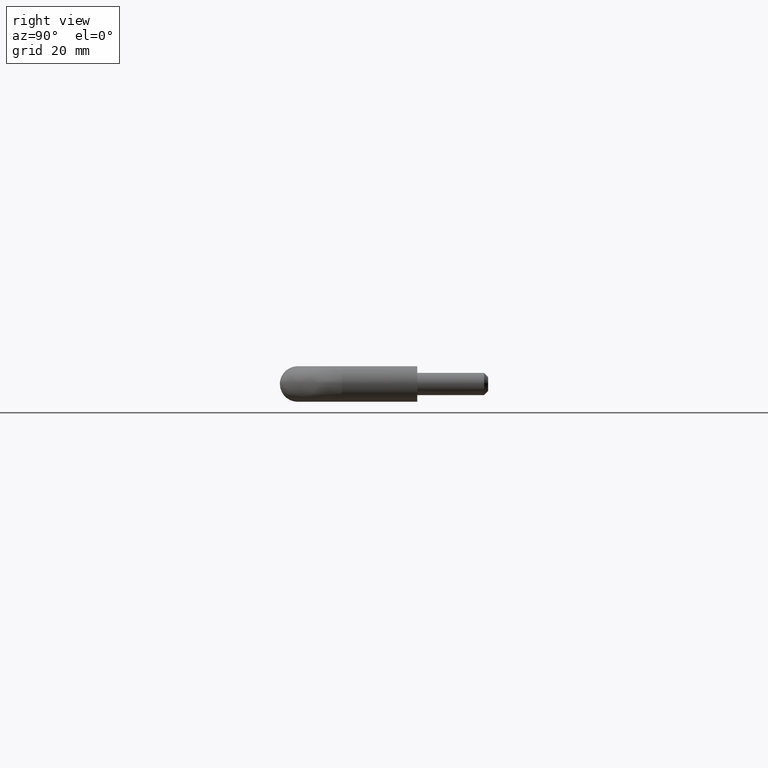
[diagram: clean part render]
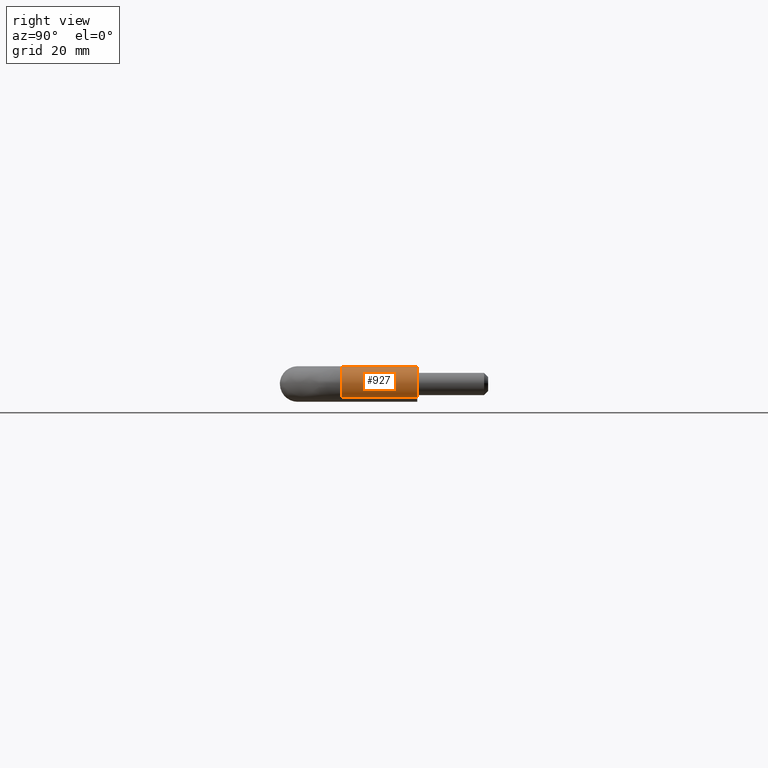
[diagram: same view with one face highlighted and labeled with its STEP entity id]
A machine part, right view. The second image highlights one B-rep face of the part: STEP entity #927.
In plain terms, the highlighted face is a freeform B-spline surface patch.
Its self-contained STEP definition (entity closure, byte-faithful):
#730=CARTESIAN_POINT('',(152.635878288640300,-17.0,-3.008678388840304));
#731=VERTEX_POINT('',#730);
#764=CARTESIAN_POINT('',(147.196363281784100,-17.000000000000021,2.853002129734826));
#765=VERTEX_POINT('',#764);
#779=CARTESIAN_POINT('',(147.196363277699700,1.766642E-014,2.853002125721120));
#780=VERTEX_POINT('',#779);
#781=CARTESIAN_POINT('',(147.196363281784100,-17.000000000000021,2.853002129734826));
#782=CARTESIAN_POINT('',(147.196363277699700,1.766642E-014,2.853002125721120));
#783=QUASI_UNIFORM_CURVE('',1,(#781,#782),.UNSPECIFIED.,.F.,.U.);
#784=EDGE_CURVE('',#765,#780,#783,.T.);
#801=CARTESIAN_POINT('',(152.635874270543410,1.639686E-014,-3.008681909052375));
#802=VERTEX_POINT('',#801);
#818=CARTESIAN_POINT('',(152.635878288640300,-17.0,-3.008678388840304));
#819=CARTESIAN_POINT('',(152.635874270543410,1.639686E-014,-3.008681909052375));
#820=QUASI_UNIFORM_CURVE('',1,(#818,#819),.UNSPECIFIED.,.F.,.U.);
#821=EDGE_CURVE('',#731,#802,#820,.T.);
#826=CARTESIAN_POINT('',(147.196362942800590,-17.425000006093509,2.853001796616725));
#827=CARTESIAN_POINT('',(150.049364739417290,-17.425000006093505,5.656638853816128));
#828=CARTESIAN_POINT('',(152.853001796616700,-17.425000006093509,2.803637057199403));
#829=CARTESIAN_POINT('',(155.656638853816100,-17.425000006093505,-0.049364739417323));
#830=CARTESIAN_POINT('',(152.803637057199410,-17.425000006093509,-2.853001796616725));
#831=CARTESIAN_POINT('',(152.721985371512720,-17.425000006093516,-2.933240684669825));
#832=CARTESIAN_POINT('',(152.635878288639760,-17.425000006093512,-3.008678388840788));
#833=CARTESIAN_POINT('',(147.196362942800590,0.435625000152357,2.853001796616725));
#834=CARTESIAN_POINT('',(150.049364739417290,0.435625000152357,5.656638853816128));
#835=CARTESIAN_POINT('',(152.853001796616700,0.435625000152356,2.803637057199403));
#836=CARTESIAN_POINT('',(155.656638853816100,0.435625000152356,-0.049364739417323));
#837=CARTESIAN_POINT('',(152.803637057199410,0.435625000152356,-2.853001796616725));
#838=CARTESIAN_POINT('',(152.721985371512720,0.435625000152356,-2.933240684669825));
#839=CARTESIAN_POINT('',(152.635878288639760,0.435625000152356,-3.008678388840788));
#847=(BOUNDED_SURFACE()B_SPLINE_SURFACE(2,1,((#826,#833),(#827,#834),(#828,#835),(#829,#836),(#830,#837),(#831,#838),(#832,#839)),.UNSPECIFIED.,.F.,.F.,.U.)B_SPLINE_SURFACE_WITH_KNOTS((3,2,2,3),(2,2),(0.0,6.627416997969558,13.254833995939119,13.519930675857900),(0.0,17.860625006245868),.UNSPECIFIED.)GEOMETRIC_REPRESENTATION_ITEM()RATIONAL_B_SPLINE_SURFACE(((1.0,1.0),(0.707106781186548,0.707106781186548),(1.0,1.0),(0.707106781186548,0.707106781186548),(1.0,1.0),(0.988284271247462,0.988284271247462),(0.977505800795127,0.977505800795127)))REPRESENTATION_ITEM('')SURFACE());
#848=CARTESIAN_POINT('',(154.0,-17.0,0.0));
#849=VERTEX_POINT('',#848);
#850=CARTESIAN_POINT('',(154.0,-17.0,0.0));
#851=CARTESIAN_POINT('',(153.999999999999970,-17.000000000000004,-1.813582623412493));
#852=CARTESIAN_POINT('',(152.635878288640300,-16.999999999999993,-3.008678388840303));
#860=(BOUNDED_CURVE()B_SPLINE_CURVE(2,(#850,#851,#852),.UNSPECIFIED.,.F.,.U.)B_SPLINE_CURVE_WITH_KNOTS((3,3),(0.0,0.134954720076216),.UNSPECIFIED.)CURVE()GEOMETRIC_REPRESENTATION_ITEM()RATIONAL_B_SPLINE_CURVE((1.0,0.841890710571235,0.854482180312937))REPRESENTATION_ITEM(''));
#861=EDGE_CURVE('',#849,#731,#860,.T.);
#862=ORIENTED_EDGE('',*,*,#861,.T.);
#863=ORIENTED_EDGE('',*,*,#821,.T.);
#864=CARTESIAN_POINT('',(154.0,1.734723E-014,0.0));
#865=VERTEX_POINT('',#864);
#866=CARTESIAN_POINT('',(154.0,1.734723E-014,0.0));
#867=CARTESIAN_POINT('',(153.999999999999970,1.734723E-014,-1.813585843486828));
#868=CARTESIAN_POINT('',(152.635874270543350,1.639686E-014,-3.008681909052374));
#876=(BOUNDED_CURVE()B_SPLINE_CURVE(2,(#866,#867,#868),.UNSPECIFIED.,.F.,.U.)B_SPLINE_CURVE_WITH_KNOTS((3,3),(0.0,0.134954921807023),.UNSPECIFIED.)CURVE()GEOMETRIC_REPRESENTATION_ITEM()RATIONAL_B_SPLINE_CURVE((1.0,0.841890474228894,0.854482217956868))REPRESENTATION_ITEM(''));
#877=EDGE_CURVE('',#865,#802,#876,.T.);
#878=ORIENTED_EDGE('',*,*,#877,.F.);
#879=CARTESIAN_POINT('',(147.196363277699760,1.766642E-014,2.853002125721121));
#880=CARTESIAN_POINT('',(148.363557342416040,1.734723E-014,4.0));
#881=CARTESIAN_POINT('',(150.0,1.734723E-014,4.0));
#882=CARTESIAN_POINT('',(153.999999999999970,1.734723E-014,4.000000000000000));
#883=CARTESIAN_POINT('',(154.0,1.734723E-014,0.0));
#891=(BOUNDED_CURVE()B_SPLINE_CURVE(2,(#879,#880,#881,#882,#883),.UNSPECIFIED.,.F.,.U.)B_SPLINE_CURVE_WITH_KNOTS((3,2,3),(0.626316793015769,0.750000000000000,1.0),.UNSPECIFIED.)CURVE()GEOMETRIC_REPRESENTATION_ITEM()RATIONAL_B_SPLINE_CURVE((0.853569642125895,0.855096109572872,1.0,0.707106781186548,1.0))REPRESENTATION_ITEM(''));
#892=EDGE_CURVE('',#780,#865,#891,.T.);
#893=ORIENTED_EDGE('',*,*,#892,.F.);
#894=ORIENTED_EDGE('',*,*,#784,.F.);
#895=CARTESIAN_POINT('',(150.278933189532300,-17.000000005944891,3.990262682553283));
#896=VERTEX_POINT('',#895);
#897=CARTESIAN_POINT('',(147.196363281784100,-17.000000000000021,2.853002129734826));
#898=CARTESIAN_POINT('',(148.363557349100920,-16.999999999999993,4.0));
#899=CARTESIAN_POINT('',(150.0,-17.0,4.0));
#900=CARTESIAN_POINT('',(150.139636647400290,-17.0,4.0));
#901=CARTESIAN_POINT('',(150.278933189532300,-17.000000005944887,3.990262682553283));
#909=(BOUNDED_CURVE()B_SPLINE_CURVE(2,(#897,#898,#899,#900,#901),.UNSPECIFIED.,.F.,.U.)B_SPLINE_CURVE_WITH_KNOTS((3,2,3),(0.626316793447803,0.750000000000000,0.762166329259532),.UNSPECIFIED.)CURVE()GEOMETRIC_REPRESENTATION_ITEM()RATIONAL_B_SPLINE_CURVE((0.853569642136559,0.855096110079032,1.0,0.985746258648125,0.972879842979988))REPRESENTATION_ITEM(''));
#910=EDGE_CURVE('',#765,#896,#909,.T.);
#911=ORIENTED_EDGE('',*,*,#910,.T.);
#912=CARTESIAN_POINT('',(150.278933189532300,-17.000000005944891,3.990262682553283));
#913=CARTESIAN_POINT('',(154.0,-17.000000000000004,3.730147045658222));
#914=CARTESIAN_POINT('',(154.0,-17.0,0.0));
#922=(BOUNDED_CURVE()B_SPLINE_CURVE(2,(#912,#913,#914),.UNSPECIFIED.,.F.,.U.)B_SPLINE_CURVE_WITH_KNOTS((3,3),(0.762166329259533,1.0),.UNSPECIFIED.)CURVE()GEOMETRIC_REPRESENTATION_ITEM()RATIONAL_B_SPLINE_CURVE((0.972879842979987,0.721360522538423,1.0))REPRESENTATION_ITEM(''));
#923=EDGE_CURVE('',#896,#849,#922,.T.);
#924=ORIENTED_EDGE('',*,*,#923,.T.);
#925=EDGE_LOOP('',(#862,#863,#878,#893,#894,#911,#924));
#926=FACE_OUTER_BOUND('',#925,.T.);
#927=ADVANCED_FACE('',(#926),#847,.T.);